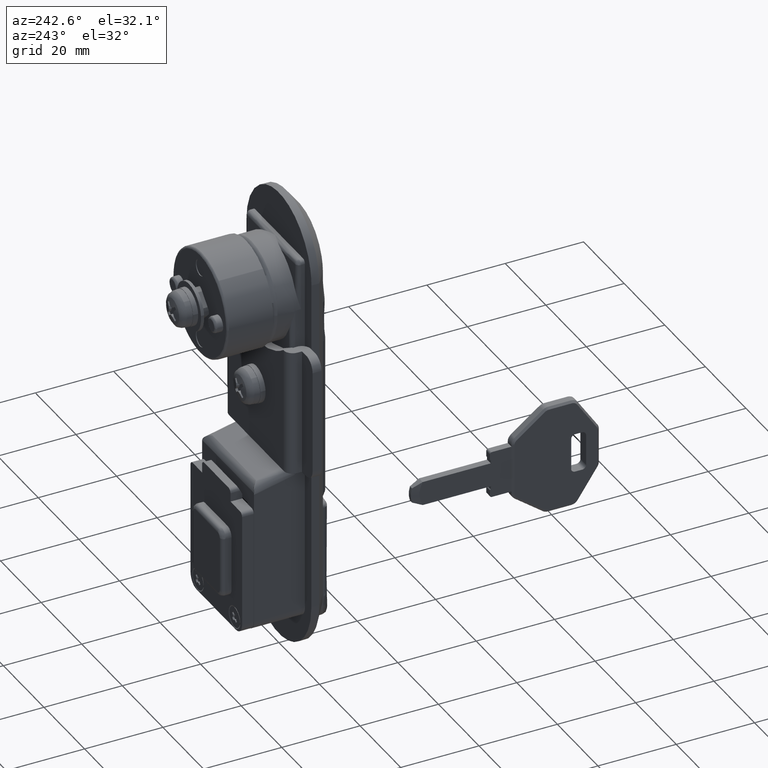
[diagram: clean part render]
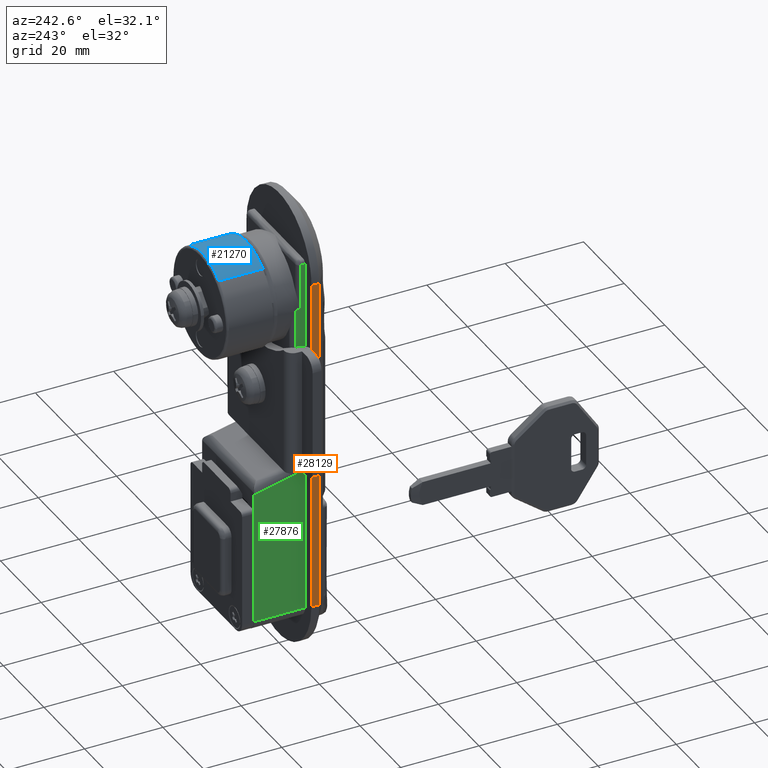
[diagram: same view with three faces highlighted in distinct colors, each labeled with its STEP entity id]
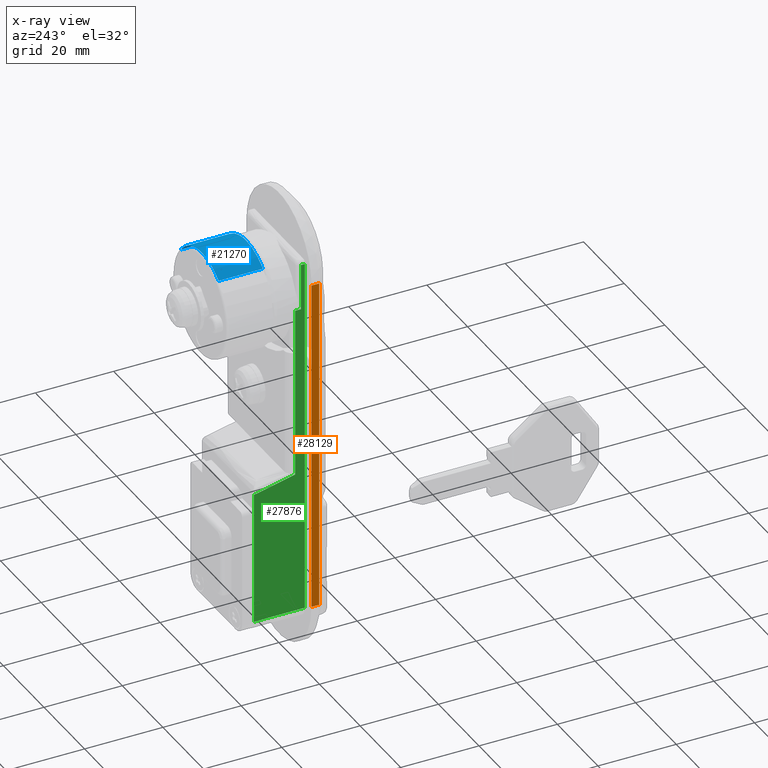
[diagram: x-ray of the same camera — body ghosted, the three highlighted faces saturated]
A machine part, auxiliary view with three faces highlighted in distinct colors.
The next image is the same camera in x-ray (body ghosted, the three faces saturated) — at least one of them is partly hidden behind the body in this view.
Their STEP definitions:

[orange] entity #28129 — the highlighted face is a freeform B-spline surface patch.
#26365=CARTESIAN_POINT('',(-2.000000000001110,16.000000001391651,-78.199999999502793));
#26366=VERTEX_POINT('',#26365);
#26453=CARTESIAN_POINT('',(-2.000000000001110,16.000000001384201,7.800000000037420));
#26454=VERTEX_POINT('',#26453);
#26460=CARTESIAN_POINT('',(-2.000000000001110,16.000000001391651,-78.199999999502793));
#26461=CARTESIAN_POINT('',(-2.000000000001110,16.000000001384201,7.800000000037420));
#26462=QUASI_UNIFORM_CURVE('',1,(#26460,#26461),.UNSPECIFIED.,.F.,.U.);
#26463=EDGE_CURVE('',#26366,#26454,#26462,.T.);
#28005=CARTESIAN_POINT('',(-1.110223E-012,16.000000001391651,-78.199999999502793));
#28006=VERTEX_POINT('',#28005);
#28024=CARTESIAN_POINT('',(-1.110223E-012,16.000000001384201,7.800000000037420));
#28025=VERTEX_POINT('',#28024);
#28026=CARTESIAN_POINT('',(-1.110223E-012,16.000000001384201,7.800000000037420));
#28027=CARTESIAN_POINT('',(-1.110223E-012,16.000000001391651,-78.199999999502793));
#28028=QUASI_UNIFORM_CURVE('',1,(#28026,#28027),.UNSPECIFIED.,.F.,.U.);
#28029=EDGE_CURVE('',#28025,#28006,#28028,.T.);
#28105=CARTESIAN_POINT('',(-2.000000000001110,16.000000001391651,-78.199999999502793));
#28106=CARTESIAN_POINT('',(-1.110223E-012,16.000000001391651,-78.199999999502793));
#28107=QUASI_UNIFORM_CURVE('',1,(#28105,#28106),.UNSPECIFIED.,.F.,.U.);
#28108=EDGE_CURVE('',#26366,#28006,#28107,.T.);
#28114=CARTESIAN_POINT('',(-2.099899996124722,16.000000001384201,12.095700333383840));
#28115=CARTESIAN_POINT('',(-2.099899996124722,16.000000001384201,-82.495695719449714));
#28116=CARTESIAN_POINT('',(0.099900049766682,16.000000001384201,12.095700333383840));
#28117=CARTESIAN_POINT('',(0.099900049766682,16.000000001384201,-82.495695719449714));
#28118=B_SPLINE_SURFACE_WITH_KNOTS('',1,1,((#28114,#28116),(#28115,#28117)),.UNSPECIFIED.,.F.,.F.,.U.,(2,2),(2,2),(0.0,94.591396052833545),(0.0,2.199800045891403),.UNSPECIFIED.);
#28119=ORIENTED_EDGE('',*,*,#28108,.F.);
#28120=ORIENTED_EDGE('',*,*,#26463,.T.);
#28121=CARTESIAN_POINT('',(-2.000000000001110,16.000000001384201,7.800000000037420));
#28122=CARTESIAN_POINT('',(-1.110223E-012,16.000000001384201,7.800000000037420));
#28123=QUASI_UNIFORM_CURVE('',1,(#28121,#28122),.UNSPECIFIED.,.F.,.U.);
#28124=EDGE_CURVE('',#26454,#28025,#28123,.T.);
#28125=ORIENTED_EDGE('',*,*,#28124,.T.);
#28126=ORIENTED_EDGE('',*,*,#28029,.T.);
#28127=EDGE_LOOP('',(#28119,#28120,#28125,#28126));
#28128=FACE_OUTER_BOUND('',#28127,.T.);
#28129=ADVANCED_FACE('',(#28128),#28118,.F.);

[blue] entity #21270 — the highlighted face is a freeform B-spline surface patch.
#21079=CARTESIAN_POINT('',(19.100000001128929,8.341694704956719,10.486950436315260));
#21080=VERTEX_POINT('',#21079);
#21126=CARTESIAN_POINT('',(19.099999999999088,-10.486950500568980,8.341694623582356));
#21127=VERTEX_POINT('',#21126);
#21143=CARTESIAN_POINT('',(7.799999999998990,-10.486955710783560,8.341688073430909));
#21144=VERTEX_POINT('',#21143);
#21145=CARTESIAN_POINT('',(19.099999999999088,-10.486950500568980,8.341694623582356));
#21146=CARTESIAN_POINT('',(7.799999999998990,-10.486955710783560,8.341688073430909));
#21147=QUASI_UNIFORM_CURVE('',1,(#21145,#21146),.UNSPECIFIED.,.F.,.U.);
#21148=EDGE_CURVE('',#21127,#21144,#21147,.T.);
#21167=CARTESIAN_POINT('',(7.799999999998990,8.341694722146398,10.486950422640600));
#21168=VERTEX_POINT('',#21167);
#21184=CARTESIAN_POINT('',(19.100000001128929,8.341694704956719,10.486950436315260));
#21185=CARTESIAN_POINT('',(7.799999999998990,8.341694722146398,10.486950422640600));
#21186=QUASI_UNIFORM_CURVE('',1,(#21184,#21185),.UNSPECIFIED.,.F.,.U.);
#21187=EDGE_CURVE('',#21080,#21168,#21186,.T.);
#21192=CARTESIAN_POINT('',(19.382500005326751,-10.545768139740494,8.267750716927681));
#21193=CARTESIAN_POINT('',(19.382500005326765,-10.516401731450177,8.304669351949027));
#21194=CARTESIAN_POINT('',(19.382500005326751,-2.145253170614154,18.828645432767349));
#21195=CARTESIAN_POINT('',(19.382500005326751,8.378718190752815,10.457500625952433));
#21196=CARTESIAN_POINT('',(19.382500005326751,8.415632133869092,10.428137949771918));
#21197=CARTESIAN_POINT('',(7.510437499865794,-10.545768139740494,8.267750716927681));
#21198=CARTESIAN_POINT('',(7.510437499865798,-10.516401731450177,8.304669351949027));
#21199=CARTESIAN_POINT('',(7.510437499865794,-2.145253170614154,18.828645432767349));
#21200=CARTESIAN_POINT('',(7.510437499865794,8.378718190752815,10.457500625952433));
#21201=CARTESIAN_POINT('',(7.510437499865794,8.415632133869092,10.428137949771918));
#21209=(BOUNDED_SURFACE()B_SPLINE_SURFACE(2,1,((#21192,#21197),(#21193,#21198),(#21194,#21199),(#21195,#21200),(#21196,#21201)),.UNSPECIFIED.,.F.,.F.,.U.)B_SPLINE_SURFACE_WITH_KNOTS((3,1,1,3),(2,2),(0.0,0.111021344175747,22.312868287374830,22.423875459992750),(0.0,11.872062505460960),.UNSPECIFIED.)GEOMETRIC_REPRESENTATION_ITEM()RATIONAL_B_SPLINE_SURFACE(((1.002929251691161,1.002929251691161),(1.001464625845580,1.001464625845580),(0.707106781186548,0.707106781186548),(1.001464438890270,1.001464438890270),(1.002928877780540,1.002928877780540)))REPRESENTATION_ITEM('')SURFACE());
#21210=CARTESIAN_POINT('',(19.099999999998900,2.642082E-010,13.400000000001690));
#21211=VERTEX_POINT('',#21210);
#21212=CARTESIAN_POINT('',(19.099999999998900,2.642082E-010,13.400000000001690));
#21213=CARTESIAN_POINT('',(19.099999999998900,4.679488465771799,13.400000000001691));
#21214=CARTESIAN_POINT('',(19.100000001128933,8.341694704956719,10.486950436315263));
#21222=(BOUNDED_CURVE()B_SPLINE_CURVE(2,(#21212,#21213,#21214),.UNSPECIFIED.,.F.,.U.)B_SPLINE_CURVE_WITH_KNOTS((3,3),(0.0,0.107863856804071),.UNSPECIFIED.)CURVE()GEOMETRIC_REPRESENTATION_ITEM()RATIONAL_B_SPLINE_CURVE((1.0,0.873629631148090,0.856305625257140))REPRESENTATION_ITEM(''));
#21223=EDGE_CURVE('',#21211,#21080,#21222,.T.);
#21224=ORIENTED_EDGE('',*,*,#21223,.T.);
#21225=ORIENTED_EDGE('',*,*,#21187,.T.);
#21226=CARTESIAN_POINT('',(7.799999999998990,2.642082E-010,13.399999999999521));
#21227=VERTEX_POINT('',#21226);
#21228=CARTESIAN_POINT('',(7.799999999998990,2.642082E-010,13.399999999999521));
#21229=CARTESIAN_POINT('',(7.799999999998991,4.679488478093135,13.399999999999531));
#21230=CARTESIAN_POINT('',(7.799999999998990,8.341694722146398,10.486950422640604));
#21238=(BOUNDED_CURVE()B_SPLINE_CURVE(2,(#21228,#21229,#21230),.UNSPECIFIED.,.F.,.U.)B_SPLINE_CURVE_WITH_KNOTS((3,3),(0.0,0.107863857052206),.UNSPECIFIED.)CURVE()GEOMETRIC_REPRESENTATION_ITEM()RATIONAL_B_SPLINE_CURVE((1.0,0.873629630857381,0.856305625177434))REPRESENTATION_ITEM(''));
#21239=EDGE_CURVE('',#21227,#21168,#21238,.T.);
#21240=ORIENTED_EDGE('',*,*,#21239,.F.);
#21241=CARTESIAN_POINT('',(7.799999999998991,-10.486955710783562,8.341688073430909));
#21242=CARTESIAN_POINT('',(7.799999999998991,-6.463399072220265,13.399999999999523));
#21243=CARTESIAN_POINT('',(7.799999999998990,2.642082E-010,13.399999999999521));
#21251=(BOUNDED_CURVE()B_SPLINE_CURVE(2,(#21241,#21242,#21243),.UNSPECIFIED.,.F.,.U.)B_SPLINE_CURVE_WITH_KNOTS((3,3),(0.857863761084566,1.0),.UNSPECIFIED.)CURVE()GEOMETRIC_REPRESENTATION_ITEM()RATIONAL_B_SPLINE_CURVE((0.856305656004231,0.833477037896082,1.0))REPRESENTATION_ITEM(''));
#21252=EDGE_CURVE('',#21144,#21227,#21251,.T.);
#21253=ORIENTED_EDGE('',*,*,#21252,.F.);
#21254=ORIENTED_EDGE('',*,*,#21148,.F.);
#21255=CARTESIAN_POINT('',(19.099999999999092,-10.486950500568977,8.341694623582358));
#21256=CARTESIAN_POINT('',(19.099999999998904,-6.463393913784863,13.400000000001686));
#21257=CARTESIAN_POINT('',(19.099999999998900,2.642082E-010,13.400000000001690));
#21265=(BOUNDED_CURVE()B_SPLINE_CURVE(2,(#21255,#21256,#21257),.UNSPECIFIED.,.F.,.U.)B_SPLINE_CURVE_WITH_KNOTS((3,3),(0.857863855633280,1.0),.UNSPECIFIED.)CURVE()GEOMETRIC_REPRESENTATION_ITEM()RATIONAL_B_SPLINE_CURVE((0.856305625633221,0.833477148666791,1.0))REPRESENTATION_ITEM(''));
#21266=EDGE_CURVE('',#21127,#21211,#21265,.T.);
#21267=ORIENTED_EDGE('',*,*,#21266,.T.);
#21268=EDGE_LOOP('',(#21224,#21225,#21240,#21253,#21254,#21267));
#21269=FACE_OUTER_BOUND('',#21268,.T.);
#21270=ADVANCED_FACE('',(#21269),#21209,.T.);

[green] entity #27876 — the highlighted face is a freeform B-spline surface patch.
#24516=CARTESIAN_POINT('',(2.499999999998520,12.800000000264260,5.817889E-015));
#24517=VERTEX_POINT('',#24516);
#24542=CARTESIAN_POINT('',(0.999999999998920,12.800000000264200,-7.759148E-016));
#24543=VERTEX_POINT('',#24542);
#24544=CARTESIAN_POINT('',(2.499999999998520,12.800000000264260,5.817889E-015));
#24545=CARTESIAN_POINT('',(0.999999999998920,12.800000000264200,-7.759148E-016));
#24546=QUASI_UNIFORM_CURVE('',1,(#24544,#24545),.UNSPECIFIED.,.F.,.U.);
#24547=EDGE_CURVE('',#24517,#24543,#24546,.T.);
#26648=CARTESIAN_POINT('',(13.000000000006599,12.800000000264260,-46.252928453550098));
#26649=VERTEX_POINT('',#26648);
#26665=CARTESIAN_POINT('',(2.500000000002420,12.800000000264200,-43.821349506180752));
#26666=VERTEX_POINT('',#26665);
#26667=CARTESIAN_POINT('',(2.500000000002420,12.800000000264200,-43.821349506180752));
#26668=CARTESIAN_POINT('',(13.000000000006599,12.800000000264260,-46.252928453550098));
#26669=QUASI_UNIFORM_CURVE('',1,(#26667,#26668),.UNSPECIFIED.,.F.,.U.);
#26670=EDGE_CURVE('',#26666,#26649,#26669,.T.);
#26814=CARTESIAN_POINT('',(3.740838E-012,12.800000000264260,-80.200000000006796));
#26815=VERTEX_POINT('',#26814);
#26831=CARTESIAN_POINT('',(13.000000000006599,12.800000000264260,-80.200000000004891));
#26832=VERTEX_POINT('',#26831);
#26833=CARTESIAN_POINT('',(13.000000000006599,12.800000000264260,-80.200000000004891));
#26834=CARTESIAN_POINT('',(3.740838E-012,12.800000000264260,-80.200000000006796));
#26835=QUASI_UNIFORM_CURVE('',1,(#26833,#26834),.UNSPECIFIED.,.F.,.U.);
#26836=EDGE_CURVE('',#26832,#26815,#26835,.T.);
#27051=CARTESIAN_POINT('',(0.999999999998920,12.800000000264200,11.799999999978841));
#27052=VERTEX_POINT('',#27051);
#27053=CARTESIAN_POINT('',(0.999999999998920,12.800000000264200,11.799999999978841));
#27054=CARTESIAN_POINT('',(0.999999999998920,12.800000000264200,-7.759148E-016));
#27055=QUASI_UNIFORM_CURVE('',1,(#27053,#27054),.UNSPECIFIED.,.F.,.U.);
#27056=EDGE_CURVE('',#27052,#24543,#27055,.T.);
#27157=CARTESIAN_POINT('',(-5.237715E-013,12.800000000264260,11.799999999978700));
#27158=VERTEX_POINT('',#27157);
#27178=CARTESIAN_POINT('',(-5.237715E-013,12.800000000264260,11.799999999978700));
#27179=CARTESIAN_POINT('',(0.999999999998920,12.800000000264200,11.799999999978841));
#27180=QUASI_UNIFORM_CURVE('',1,(#27178,#27179),.UNSPECIFIED.,.F.,.U.);
#27181=EDGE_CURVE('',#27158,#27052,#27180,.T.);
#27206=CARTESIAN_POINT('',(2.499999999998520,12.800000000264260,5.817889E-015));
#27207=CARTESIAN_POINT('',(2.500000000002420,12.800000000264200,-43.821349506180752));
#27208=QUASI_UNIFORM_CURVE('',1,(#27206,#27207),.UNSPECIFIED.,.F.,.U.);
#27209=EDGE_CURVE('',#24517,#26666,#27208,.T.);
#27853=CARTESIAN_POINT('',(-0.649349974804356,12.800000000264200,-84.795397230801697));
#27854=CARTESIAN_POINT('',(13.649350323497600,12.800000000264200,-84.795397230801697));
#27855=CARTESIAN_POINT('',(-0.649349974804356,12.800000000264200,16.395402166038341));
#27856=CARTESIAN_POINT('',(13.649350323497600,12.800000000264200,16.395402166038341));
#27857=B_SPLINE_SURFACE_WITH_KNOTS('',1,1,((#27853,#27855),(#27854,#27856)),.UNSPECIFIED.,.F.,.F.,.U.,(2,2),(2,2),(0.0,14.298700298301959),(0.0,101.190799396840010),.UNSPECIFIED.);
#27858=CARTESIAN_POINT('',(13.000000000006599,12.800000000264260,-80.200000000004891));
#27859=CARTESIAN_POINT('',(13.000000000006599,12.800000000264260,-46.252928453550098));
#27860=QUASI_UNIFORM_CURVE('',1,(#27858,#27859),.UNSPECIFIED.,.F.,.U.);
#27861=EDGE_CURVE('',#26832,#26649,#27860,.T.);
#27862=ORIENTED_EDGE('',*,*,#27861,.F.);
#27863=ORIENTED_EDGE('',*,*,#26836,.T.);
#27864=CARTESIAN_POINT('',(-5.237715E-013,12.800000000264260,11.799999999978700));
#27865=CARTESIAN_POINT('',(3.740838E-012,12.800000000264260,-80.200000000006796));
#27866=QUASI_UNIFORM_CURVE('',1,(#27864,#27865),.UNSPECIFIED.,.F.,.U.);
#27867=EDGE_CURVE('',#27158,#26815,#27866,.T.);
#27868=ORIENTED_EDGE('',*,*,#27867,.F.);
#27869=ORIENTED_EDGE('',*,*,#27181,.T.);
#27870=ORIENTED_EDGE('',*,*,#27056,.T.);
#27871=ORIENTED_EDGE('',*,*,#24547,.F.);
#27872=ORIENTED_EDGE('',*,*,#27209,.T.);
#27873=ORIENTED_EDGE('',*,*,#26670,.T.);
#27874=EDGE_LOOP('',(#27862,#27863,#27868,#27869,#27870,#27871,#27872,#27873));
#27875=FACE_OUTER_BOUND('',#27874,.T.);
#27876=ADVANCED_FACE('',(#27875),#27857,.F.);